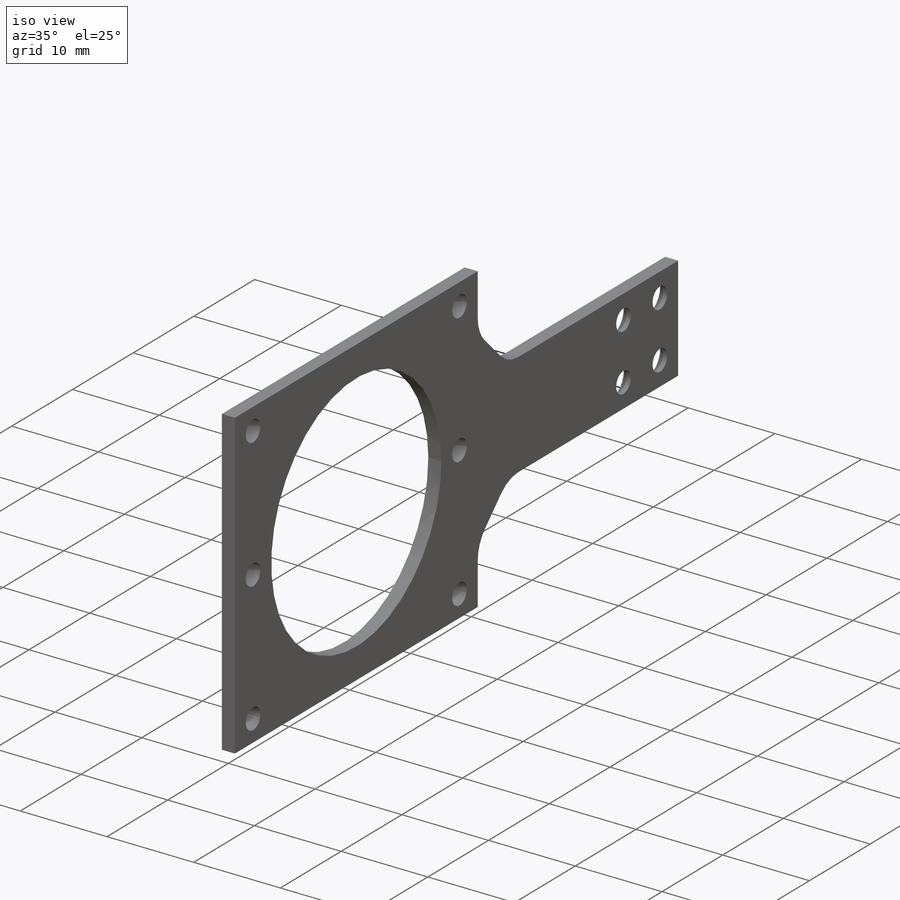
[diagram: iso view]
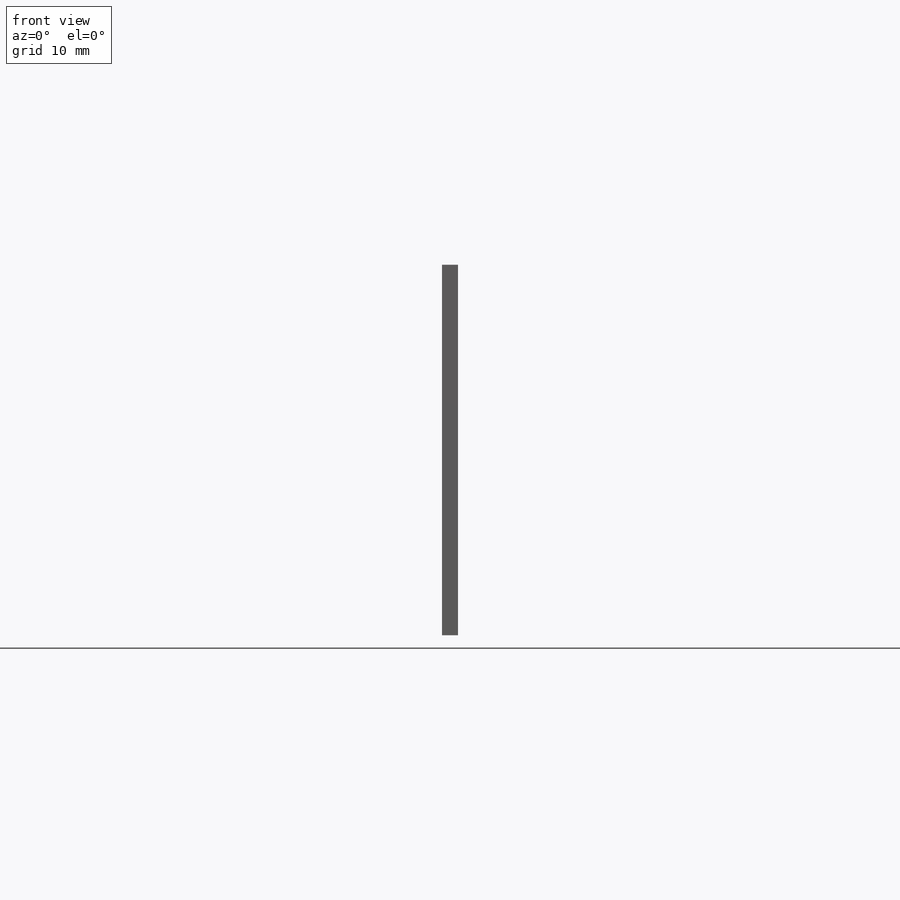
[diagram: front view]
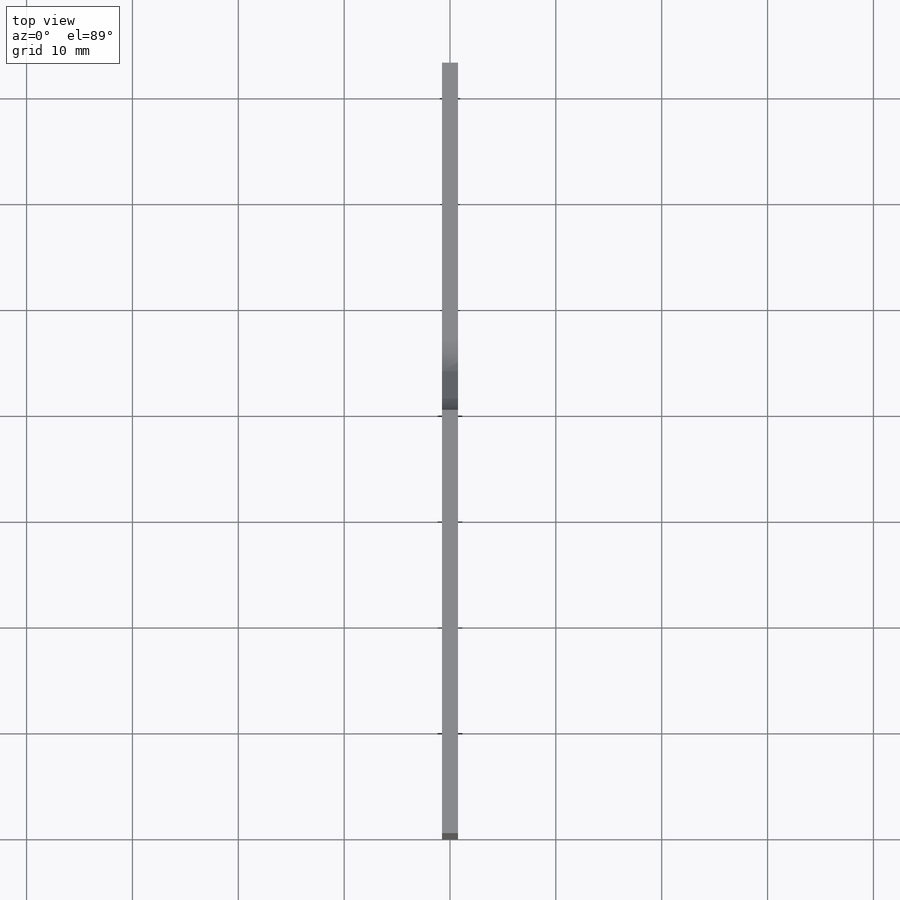
[diagram: top view]
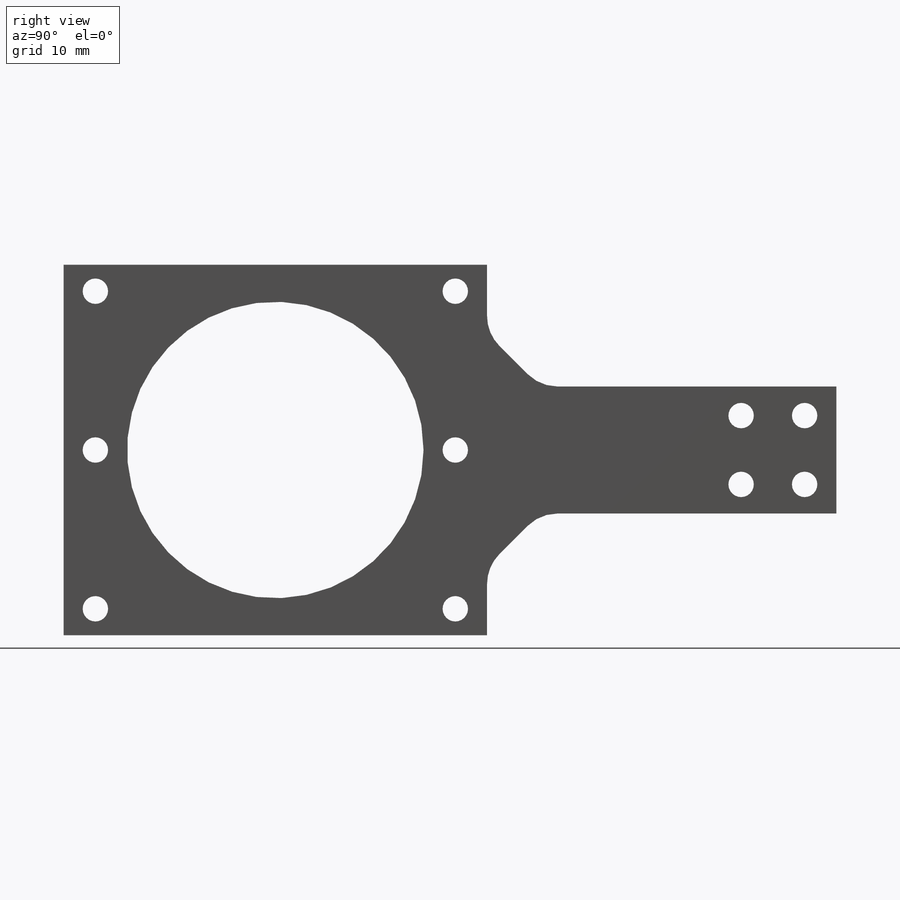
[diagram: right view]
SOLIDWORKS PART (.sldprt)
format: sldprt  version: not decoded by parser v0  size: 329,728 bytes
history: native  units: mm
features: sketch x7, extrude x2, hole x2, material x1, cut_extrude x1, mirror x1, chamfer x1, fillet x1 (+12 scaffold rows collapsed)
feature tree (28):
  scaffold x12  (default folders/planes/origin — collapsed)
  material  "Hexcel AS4C (3000 Filaments)"
  sketch  "Sketch1"  dims[D1=1.5mm D2=35.0mm]
  extrude  "Boss-Extrude1"  Depth=20mm
  sketch  "Sketch2"  dims[D1=28.0mm]
  cut_extrude  "Cut-Extrude1"  Depth=20mm
  hole  "M2 Clearance Hole1"  Diameter=2.4mm Depth=12mm
  sketch  "Sketch4"  dims[D1=3.0mm D2=30.0mm]
  sketch  "Sketch3"  dims[hole-wizard template sketch: 49 standard entries collapsed; hole parameters kept: c15.Drill Angle=118.0deg]
  mirror  "Mirror1"
  sketch  "Sketch5"  dims[D1=12.0mm]
  extrude  "Boss-Extrude2"  Depth=33mm
  chamfer  "Chamfer1"  Distance=5mm Angle=45deg
  fillet  "Fillet1"  Radius=4mm
  hole  "CSK for M2 Countersunk Flat Head Screw1"  Diameter=2.4mm Depth=1.5mm
  sketch  "Sketch8"  dims[D1=6.0mm D2=6.5mm D3=3.0mm]
  sketch  "Sketch7"  dims[hole-wizard template sketch: 55 standard entries collapsed; hole parameters kept: c17.Thru Hole Depth=1.5mm c17.Near C'Sink Dia.=4.4mm c17.D4=~3.666174mm c17.Near C'Sink Angle=90.0deg]
decode coverage: 14 of 15 modeling features carry decoded parameters
note: ~ marks probable driven/reference dimensions
note: suppression state not decoded; provenance and decode notes live in map.json
